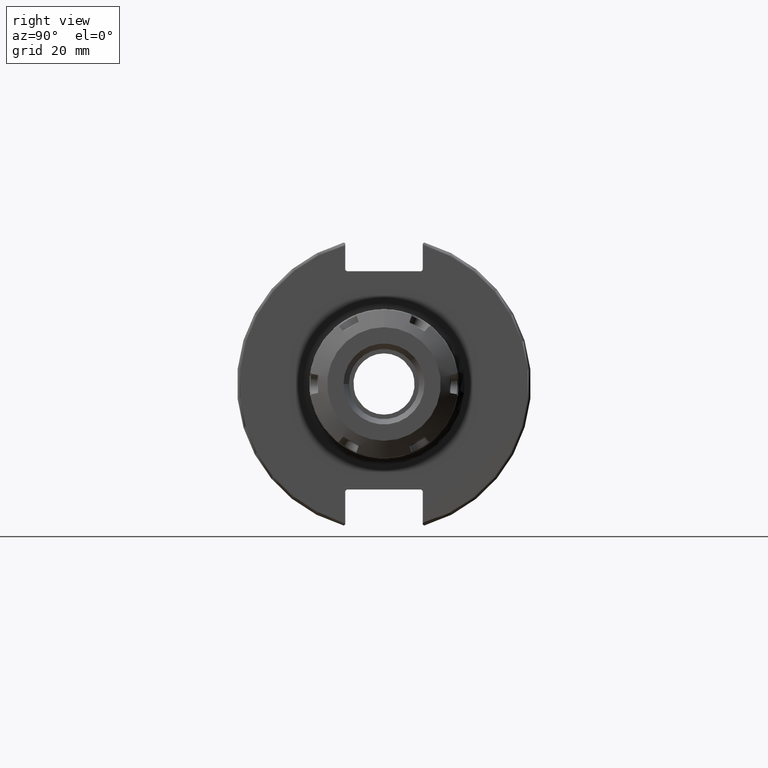
[diagram: clean part render]
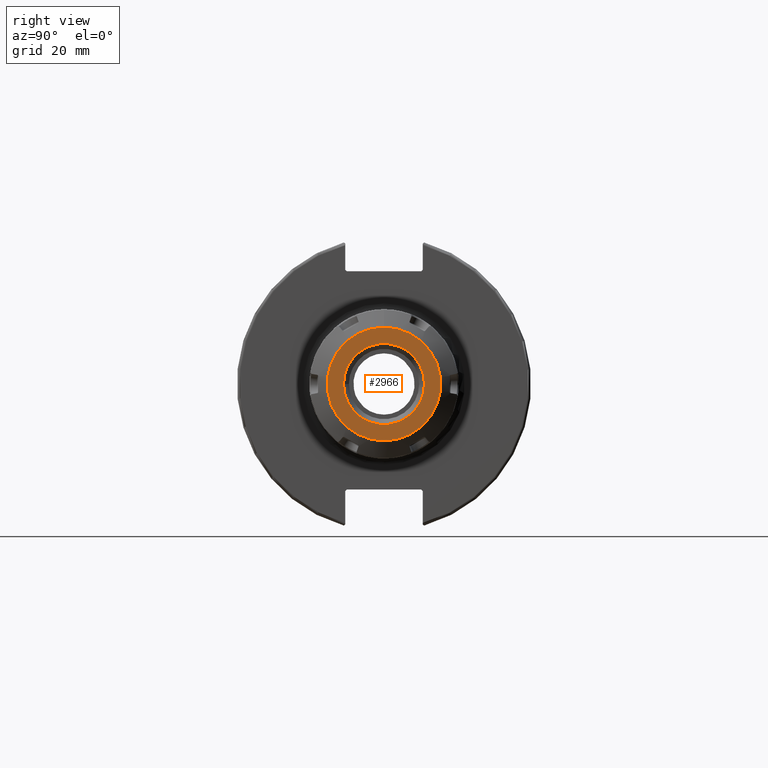
[diagram: same view with one face highlighted and labeled with its STEP entity id]
A machine part, right view. The second image highlights one B-rep face of the part: STEP entity #2966.
In plain terms, the highlighted planar face has unit normal (1, 0, 0).
Its self-contained STEP definition (entity closure, byte-faithful):
#332=FACE_BOUND('',#701,.T.);
#374=PLANE('',#3311);
#505=FACE_OUTER_BOUND('',#700,.T.);
#700=EDGE_LOOP('',(#2478));
#701=EDGE_LOOP('',(#2479));
#1217=CIRCLE('',#3310,13.55);
#1218=CIRCLE('',#3312,19.);
#1427=VERTEX_POINT('',#5203);
#1428=VERTEX_POINT('',#5207);
#1792=EDGE_CURVE('',#1427,#1427,#1217,.T.);
#1793=EDGE_CURVE('',#1428,#1428,#1218,.T.);
#2478=ORIENTED_EDGE('',*,*,#1793,.T.);
#2479=ORIENTED_EDGE('',*,*,#1792,.F.);
#2966=ADVANCED_FACE('',(#505,#332),#374,.T.);
#3310=AXIS2_PLACEMENT_3D('',#5205,#3919,#3920);
#3311=AXIS2_PLACEMENT_3D('',#5206,#3921,#3922);
#3312=AXIS2_PLACEMENT_3D('',#5208,#3923,#3924);
#3919=DIRECTION('center_axis',(1.,0.,0.));
#3920=DIRECTION('ref_axis',(0.,-1.,0.));
#3921=DIRECTION('center_axis',(1.,0.,0.));
#3922=DIRECTION('ref_axis',(0.,0.,-1.));
#3923=DIRECTION('center_axis',(1.,0.,0.));
#3924=DIRECTION('ref_axis',(0.,0.,1.));
#5203=CARTESIAN_POINT('',(11.25,13.55,1.65939641284466E-15));
#5205=CARTESIAN_POINT('Origin',(11.25,0.,0.));
#5206=CARTESIAN_POINT('Origin',(11.25,0.,0.));
#5207=CARTESIAN_POINT('',(11.25,0.,19.));
#5208=CARTESIAN_POINT('Origin',(11.25,0.,0.));